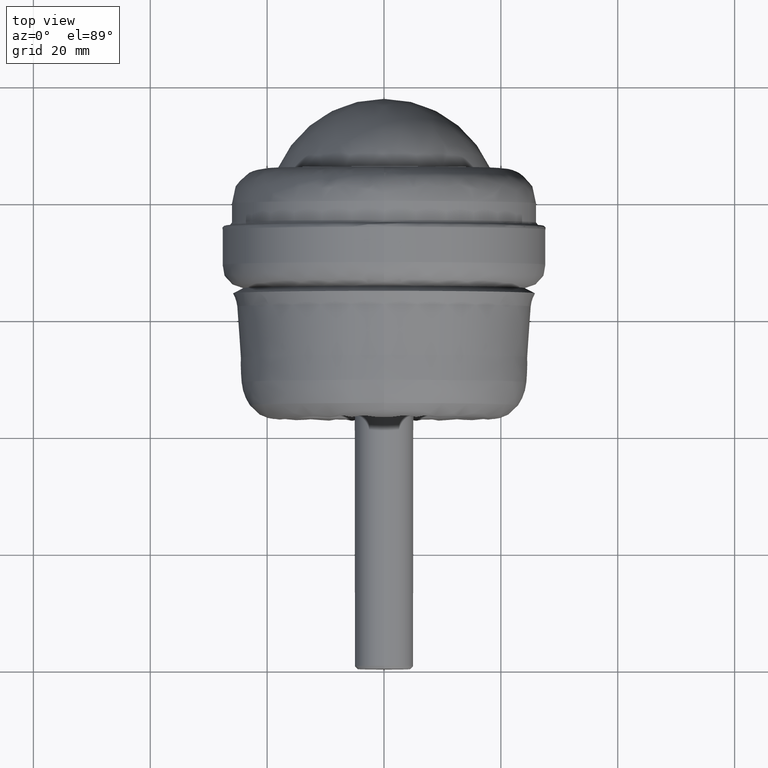
[diagram: clean part render]
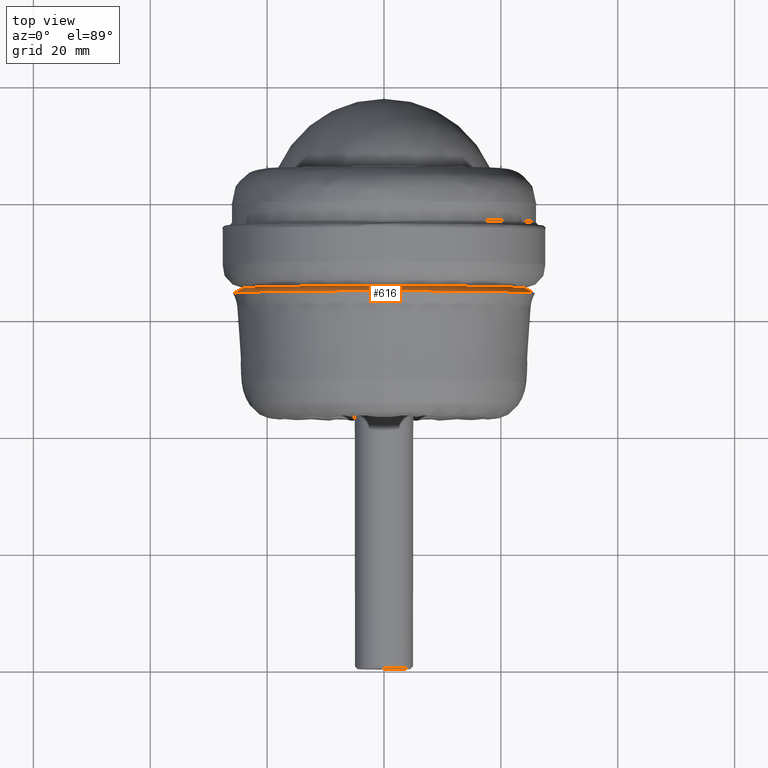
[diagram: same view with one face highlighted and labeled with its STEP entity id]
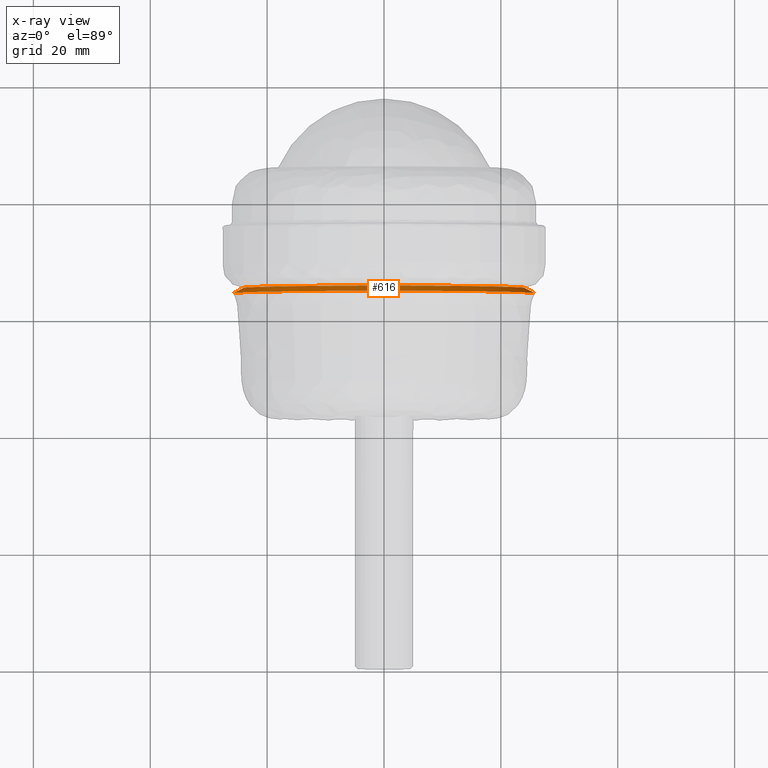
[diagram: x-ray of the same camera — body ghosted, the highlighted face saturated]
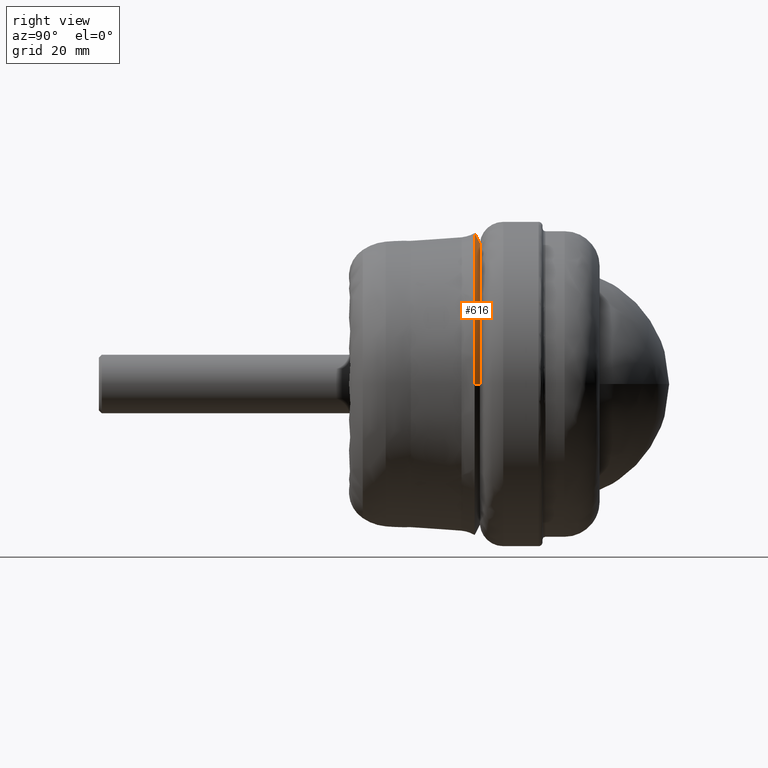
[diagram: same view with one face highlighted and labeled with its STEP entity id]
A machine part, top view. The second image highlights one B-rep face of the part: STEP entity #616.
The next image is the same camera in x-ray: the body ghosted, the highlighted face saturated — about 0% of this face is hidden behind the body in this view.
A second angle (right view) of the same face is appended — the face is thin or edge-on in the first view.
In plain terms, the highlighted conical surface has half-angle 62.574 deg.
Its self-contained STEP definition (entity closure, byte-faithful):
#84 = CARTESIAN_POINT ( 'NONE',  ( 25.83104309500000184, 64.31225575343756873, 0.0000000000000000000 ) ) ;
#105 = DIRECTION ( 'NONE',  ( 1.000000000000000000, -5.372523191098201466E-16, 0.0000000000000000000 ) ) ;
#142 = CARTESIAN_POINT ( 'NONE',  ( 24.09207305389813314, 65.21465358772955767, 0.0000000000000000000 ) ) ;
#143 = DIRECTION ( 'NONE',  ( 0.0000000000000000000, 0.0000000000000000000, -1.000000000000000000 ) ) ;
#158 = VERTEX_POINT ( 'NONE', #840 ) ;
#166 = DIRECTION ( 'NONE',  ( 0.0000000000000000000, 0.0000000000000000000, -1.000000000000000000 ) ) ;
#189 = DIRECTION ( 'NONE',  ( -0.0000000000000000000, -1.000000000000000000, -0.0000000000000000000 ) ) ;
#190 = AXIS2_PLACEMENT_3D ( 'NONE', #1151, #1440, #105 ) ;
#194 = CARTESIAN_POINT ( 'NONE',  ( 0.0000000000000000000, 65.21465358772955767, 0.0000000000000000000 ) ) ;
#208 = VERTEX_POINT ( 'NONE', #1027 ) ;
#219 = CIRCLE ( 'NONE', #1276, 24.09207305389813314 ) ;
#238 = ORIENTED_EDGE ( 'NONE', *, *, #1745, .T. ) ;
#255 = EDGE_CURVE ( 'NONE', #208, #332, #1083, .T. ) ;
#265 = VERTEX_POINT ( 'NONE', #142 ) ;
#276 = CARTESIAN_POINT ( 'NONE',  ( 0.0000000000000000000, 65.21465358772955767, 0.0000000000000000000 ) ) ;
#298 = DIRECTION ( 'NONE',  ( 0.0000000000000000000, 1.000000000000000000, 0.0000000000000000000 ) ) ;
#332 = VERTEX_POINT ( 'NONE', #1093 ) ;
#396 = DIRECTION ( 'NONE',  ( 0.0000000000000000000, 0.0000000000000000000, -1.000000000000000000 ) ) ;
#419 = VERTEX_POINT ( 'NONE', #1659 ) ;
#449 = CIRCLE ( 'NONE', #1811, 24.09207305389813314 ) ;
#469 = DIRECTION ( 'NONE',  ( 0.0000000000000000000, 0.0000000000000000000, -1.000000000000000000 ) ) ;
#484 = CIRCLE ( 'NONE', #1305, 25.83104309499999474 ) ;
#499 = CONICAL_SURFACE ( 'NONE', #190, 25.83104309500000184, 1.092122326142933808 ) ;
#501 = AXIS2_PLACEMENT_3D ( 'NONE', #1471, #298, #166 ) ;
#508 = DIRECTION ( 'NONE',  ( 0.8876064616954905118, -0.4606026152296703313, 0.0000000000000000000 ) ) ;
#544 = EDGE_CURVE ( 'NONE', #265, #419, #961, .T. ) ;
#549 = ORIENTED_EDGE ( 'NONE', *, *, #1625, .T. ) ;
#572 = VECTOR ( 'NONE', #508, 1000.000000000000114 ) ;
#616 = ADVANCED_FACE ( 'NONE', ( #633 ), #499, .T. ) ;
#633 = FACE_OUTER_BOUND ( 'NONE', #1847, .T. ) ;
#649 = ORIENTED_EDGE ( 'NONE', *, *, #544, .F. ) ;
#840 = CARTESIAN_POINT ( 'NONE',  ( 3.174411441330980301E-15, 65.21465358772955767, 24.09207305389813314 ) ) ;
#905 = VERTEX_POINT ( 'NONE', #1551 ) ;
#961 = LINE ( 'NONE', #84, #572 ) ;
#1000 = DIRECTION ( 'NONE',  ( -0.0000000000000000000, -1.000000000000000000, -0.0000000000000000000 ) ) ;
#1027 = CARTESIAN_POINT ( 'NONE',  ( -25.83104309500003026, 64.31225575343758294, 3.163390424492912950E-15 ) ) ;
#1083 = CIRCLE ( 'NONE', #501, 25.83104309499999474 ) ;
#1093 = CARTESIAN_POINT ( 'NONE',  ( 3.163390424492909400E-15, 64.31225575343758294, 25.83104309499999829 ) ) ;
#1103 = ORIENTED_EDGE ( 'NONE', *, *, #1435, .T. ) ;
#1151 = CARTESIAN_POINT ( 'NONE',  ( 0.0000000000000000000, 64.31225575343758294, 0.0000000000000000000 ) ) ;
#1276 = AXIS2_PLACEMENT_3D ( 'NONE', #276, #1000, #396 ) ;
#1293 = DIRECTION ( 'NONE',  ( 0.0000000000000000000, 1.000000000000000000, 0.0000000000000000000 ) ) ;
#1305 = AXIS2_PLACEMENT_3D ( 'NONE', #1851, #1293, #143 ) ;
#1407 = LINE ( 'NONE', #1727, #1862 ) ;
#1412 = ORIENTED_EDGE ( 'NONE', *, *, #255, .T. ) ;
#1435 = EDGE_CURVE ( 'NONE', #265, #158, #449, .T. ) ;
#1440 = DIRECTION ( 'NONE',  ( -2.686261595549100733E-16, -1.000000000000000000, 0.0000000000000000000 ) ) ;
#1453 = DIRECTION ( 'NONE',  ( -0.8876064616954907338, -0.4606026152296699427, 1.087004412217890306E-16 ) ) ;
#1471 = CARTESIAN_POINT ( 'NONE',  ( 0.0000000000000000000, 64.31225575343758294, 0.0000000000000000000 ) ) ;
#1551 = CARTESIAN_POINT ( 'NONE',  ( -24.09207305389813314, 65.21465358772955767, 3.056909219760481665E-15 ) ) ;
#1587 = ORIENTED_EDGE ( 'NONE', *, *, #1652, .T. ) ;
#1625 = EDGE_CURVE ( 'NONE', #332, #419, #484, .T. ) ;
#1652 = EDGE_CURVE ( 'NONE', #158, #905, #219, .T. ) ;
#1659 = CARTESIAN_POINT ( 'NONE',  ( 25.83104309499997342, 64.31225575343758294, 0.0000000000000000000 ) ) ;
#1727 = CARTESIAN_POINT ( 'NONE',  ( -25.83104309500000184, 64.31225575343759715, 3.163390424492909400E-15 ) ) ;
#1745 = EDGE_CURVE ( 'NONE', #905, #208, #1407, .T. ) ;
#1811 = AXIS2_PLACEMENT_3D ( 'NONE', #194, #189, #469 ) ;
#1847 = EDGE_LOOP ( 'NONE', ( #1103, #1587, #238, #1412, #549, #649 ) ) ;
#1851 = CARTESIAN_POINT ( 'NONE',  ( 0.0000000000000000000, 64.31225575343758294, 0.0000000000000000000 ) ) ;
#1862 = VECTOR ( 'NONE', #1453, 1000.000000000000000 ) ;